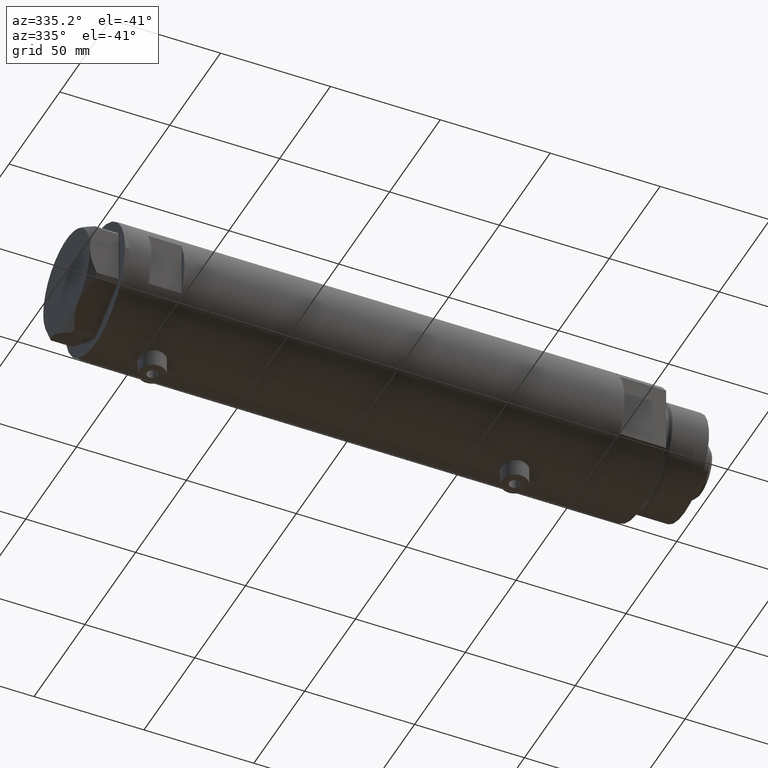
[diagram: clean part render]
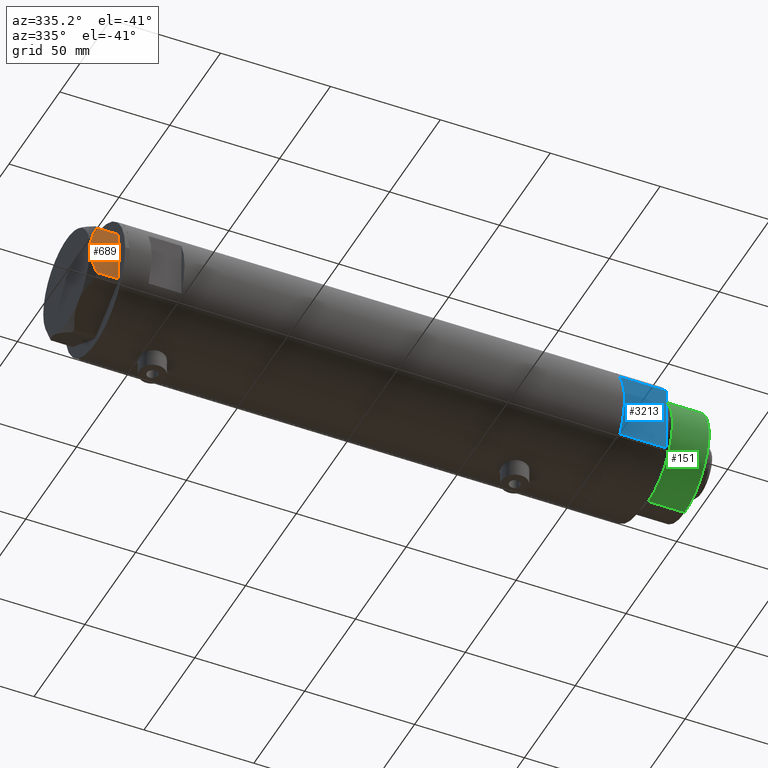
[diagram: same view with three faces highlighted in distinct colors, each labeled with its STEP entity id]
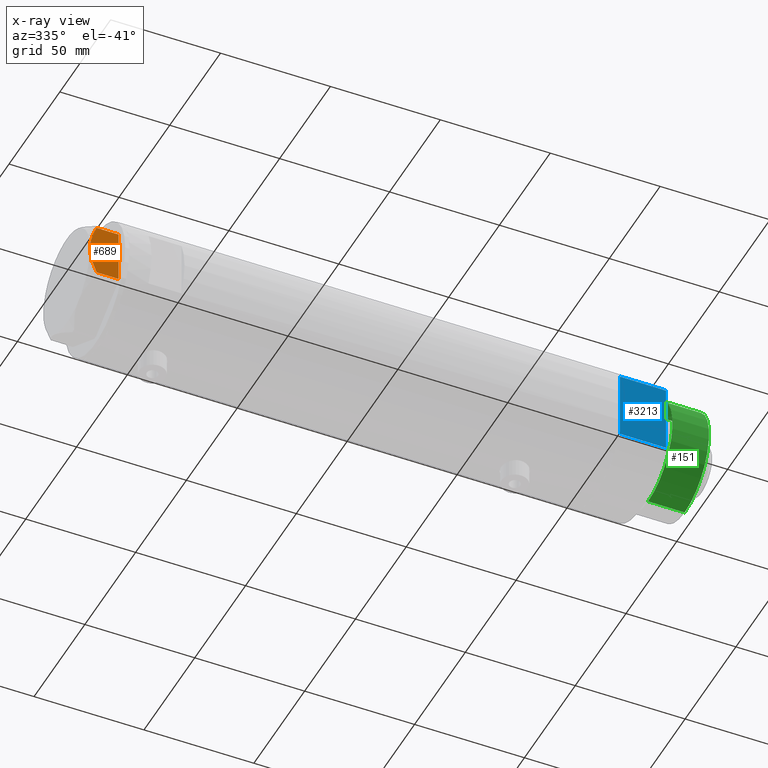
[diagram: x-ray of the same camera — body ghosted, the three highlighted faces saturated]
A machine part, auxiliary view with three faces highlighted in distinct colors.
The next image is the same camera in x-ray (body ghosted, the three faces saturated) — at least one of them is partly hidden behind the body in this view.
Their STEP definitions:

[orange] entity #689 — the highlighted planar face has unit normal (-0, 1, -0).
#215 = EDGE_CURVE ( 'NONE', #2038, #1825, #3089, .T. ) ;
#260 = B_SPLINE_CURVE_WITH_KNOTS ( 'NONE', 3,
 ( #3704, #3304, #1782, #4457, #2695, #2907, #3637, #4749, #4384, #1807 ),
 .UNSPECIFIED., .F., .F.,
 ( 4, 2, 2, 2, 4 ),
 ( 0.03516523594057417712, 0.03831677594541236381, 0.03989254594783145369, 0.04146831595025054357, 0.04777139595992690307 ),
 .UNSPECIFIED. ) ;
#374 = ORIENTED_EDGE ( 'NONE', *, *, #1133, .T. ) ;
#392 = CARTESIAN_POINT ( 'NONE',  ( -22.99999999999990763, -12.15905619136149340, 9.983800287807616414 ) ) ;
#544 = CARTESIAN_POINT ( 'NONE',  ( -22.99999999999992184, -7.253003311474400583, 11.90327681034764140 ) ) ;
#668 = CARTESIAN_POINT ( 'NONE',  ( -22.99999999999999645, 13.27905619136132032, 0.000000000000000000 ) ) ;
#689 = ADVANCED_FACE ( 'NONE', ( #1710 ), #1011, .F. ) ;
#695 = VERTEX_POINT ( 'NONE', #4694 ) ;
#750 = VERTEX_POINT ( 'NONE', #392 ) ;
#887 = ORIENTED_EDGE ( 'NONE', *, *, #215, .T. ) ;
#941 = CARTESIAN_POINT ( 'NONE',  ( -22.99999999999994316, -2.643615312305168441, 12.85430456063626714 ) ) ;
#952 = LINE ( 'NONE', #2443, #3418 ) ;
#1011 = PLANE ( 'NONE',  #1163 ) ;
#1133 = EDGE_CURVE ( 'NONE', #1825, #750, #952, .T. ) ;
#1163 = AXIS2_PLACEMENT_3D ( 'NONE', #4741, #4674, #3977 ) ;
#1279 = CARTESIAN_POINT ( 'NONE',  ( -23.00000000000004619, -8.112498833180673323E-14, 13.00000000000000000 ) ) ;
#1287 = DIRECTION ( 'NONE',  ( 0.000000000000000000, 0.000000000000000000, 1.000000000000000000 ) ) ;
#1310 = ORIENTED_EDGE ( 'NONE', *, *, #2504, .F. ) ;
#1339 = EDGE_CURVE ( 'NONE', #695, #2038, #2711, .T. ) ;
#1569 = EDGE_CURVE ( 'NONE', #695, #3770, #260, .T. ) ;
#1604 = CARTESIAN_POINT ( 'NONE',  ( -22.99999999999994316, -1.063773509315741217, 12.98143808360682883 ) ) ;
#1703 = DIRECTION ( 'NONE',  ( 3.527173405730720141E-15, -1.000000000000000000, 0.000000000000000000 ) ) ;
#1710 = FACE_OUTER_BOUND ( 'NONE', #3928, .T. ) ;
#1782 = CARTESIAN_POINT ( 'NONE',  ( -22.99999999999998579, 10.23890159976121517, 10.84081242829091707 ) ) ;
#1807 = CARTESIAN_POINT ( 'NONE',  ( -23.00000000000004619, -8.112498833180673323E-14, 13.00000000000000000 ) ) ;
#1818 = CARTESIAN_POINT ( 'NONE',  ( -22.99999999999990763, -12.15905619136148985, 0.000000000000000000 ) ) ;
#1825 = VERTEX_POINT ( 'NONE', #1818 ) ;
#1845 = VECTOR ( 'NONE', #1703, 1000.000000000000000 ) ;
#2025 = CARTESIAN_POINT ( 'NONE',  ( -22.99999999999991829, -9.734726261263313418, 11.02892470009565251 ) ) ;
#2038 = VERTEX_POINT ( 'NONE', #2691 ) ;
#2387 = CARTESIAN_POINT ( 'NONE',  ( -22.99999999999995381, -0.5295934231897790889, 13.00000000000009237 ) ) ;
#2443 = CARTESIAN_POINT ( 'NONE',  ( -22.99999999999990763, -12.15905619136148985, 13.00000000000000000 ) ) ;
#2504 = EDGE_CURVE ( 'NONE', #3770, #750, #2619, .T. ) ;
#2619 = B_SPLINE_CURVE_WITH_KNOTS ( 'NONE', 3,
 ( #1279, #2387, #1604, #4217, #941, #4567, #3875, #544, #2702, #2025, #3517, #3833, #4166, #3072 ),
 .UNSPECIFIED., .F., .F.,
 ( 4, 2, 2, 2, 2, 2, 4 ),
 ( 0.04777139595992690307, 0.04934380568070230455, 0.05091621540147769909, 0.05406103484302849510, 0.05720585428457929111, 0.05877826400535468565, 0.06035067372613008019 ),
 .UNSPECIFIED. ) ;
#2663 = DIRECTION ( 'NONE',  ( 0.000000000000000000, 0.000000000000000000, -1.000000000000000000 ) ) ;
#2691 = CARTESIAN_POINT ( 'NONE',  ( -22.99999999999999289, 12.15905619136131754, 0.000000000000000000 ) ) ;
#2695 = CARTESIAN_POINT ( 'NONE',  ( -22.99999999999997513, 8.246028007352348865, 11.57113180864690705 ) ) ;
#2702 = CARTESIAN_POINT ( 'NONE',  ( -22.99999999999992184, -8.252113629125281236, 11.58164206268022234 ) ) ;
#2711 = LINE ( 'NONE', #4551, #2714 ) ;
#2714 = VECTOR ( 'NONE', #2663, 1000.000000000000000 ) ;
#2907 = CARTESIAN_POINT ( 'NONE',  ( -22.99999999999997513, 7.239756182922193695, 11.89218606342285156 ) ) ;
#3072 = CARTESIAN_POINT ( 'NONE',  ( -22.99999999999990763, -12.15905619136149340, 9.983800287807616414 ) ) ;
#3089 = LINE ( 'NONE', #668, #1845 ) ;
#3304 = CARTESIAN_POINT ( 'NONE',  ( -22.99999999999998579, 11.20825071633914582, 10.42817330637845430 ) ) ;
#3418 = VECTOR ( 'NONE', #1287, 1000.000000000000000 ) ;
#3517 = CARTESIAN_POINT ( 'NONE',  ( -22.99999999999991473, -10.22738952213796715, 10.83247031367477398 ) ) ;
#3637 = CARTESIAN_POINT ( 'NONE',  ( -22.99999999999997513, 6.734330413511418811, 12.03938974125266981 ) ) ;
#3704 = CARTESIAN_POINT ( 'NONE',  ( -22.99999999999999289, 12.15905619136132110, 9.983800287807621743 ) ) ;
#3770 = VERTEX_POINT ( 'NONE', #4293 ) ;
#3833 = CARTESIAN_POINT ( 'NONE',  ( -22.99999999999990763, -11.20155944044818241, 10.42110268263274264 ) ) ;
#3875 = CARTESIAN_POINT ( 'NONE',  ( -22.99999999999993250, -5.228918809624134134, 12.43333703384985611 ) ) ;
#3928 = EDGE_LOOP ( 'NONE', ( #4045, #4051, #887, #374, #1310 ) ) ;
#3977 = DIRECTION ( 'NONE',  ( -3.527173405730720929E-15, 1.000000000000000000, 0.000000000000000000 ) ) ;
#4045 = ORIENTED_EDGE ( 'NONE', *, *, #1569, .F. ) ;
#4051 = ORIENTED_EDGE ( 'NONE', *, *, #1339, .T. ) ;
#4166 = CARTESIAN_POINT ( 'NONE',  ( -22.99999999999991473, -11.68282849742337248, 10.20637235269541776 ) ) ;
#4217 = CARTESIAN_POINT ( 'NONE',  ( -22.99999999999993250, -2.119709279061928964, 12.90853521217319688 ) ) ;
#4293 = CARTESIAN_POINT ( 'NONE',  ( -23.00000000000004619, -8.112498833180673323E-14, 13.00000000000000000 ) ) ;
#4384 = CARTESIAN_POINT ( 'NONE',  ( -22.99999999999996092, 2.122900714018063795, 13.00000000000009592 ) ) ;
#4457 = CARTESIAN_POINT ( 'NONE',  ( -22.99999999999997158, 8.748091966971372813, 11.39681897828457302 ) ) ;
#4551 = CARTESIAN_POINT ( 'NONE',  ( -22.99999999999999289, 12.15905619136131754, 13.00000000000000000 ) ) ;
#4567 = CARTESIAN_POINT ( 'NONE',  ( -22.99999999999992895, -4.203926054641974552, 12.64168122312250553 ) ) ;
#4674 = DIRECTION ( 'NONE',  ( 1.000000000000000000, 3.527173405730720929E-15, -0.000000000000000000 ) ) ;
#4694 = CARTESIAN_POINT ( 'NONE',  ( -22.99999999999999289, 12.15905619136132110, 9.983800287807621743 ) ) ;
#4741 = CARTESIAN_POINT ( 'NONE',  ( -22.99999999999999645, 13.27905619136132032, 13.00000000000000000 ) ) ;
#4749 = CARTESIAN_POINT ( 'NONE',  ( -22.99999999999996447, 4.194757081058973824, 12.70300035152520302 ) ) ;

[blue] entity #3213 — the highlighted planar face has unit normal (-0, 1, 0).
#186 = CARTESIAN_POINT ( 'NONE',  ( -15.66045976336582690, -25.00000000000000000, 0.000000000000000000 ) ) ;
#287 = VERTEX_POINT ( 'NONE', #2507 ) ;
#452 = EDGE_CURVE ( 'NONE', #2509, #813, #3520, .T. ) ;
#462 = ORIENTED_EDGE ( 'NONE', *, *, #452, .F. ) ;
#480 = AXIS2_PLACEMENT_3D ( 'NONE', #686, #1145, #783 ) ;
#521 = DIRECTION ( 'NONE',  ( -0.000000000000000000, -0.000000000000000000, 1.000000000000000000 ) ) ;
#527 = EDGE_LOOP ( 'NONE', ( #2682, #462, #3110, #3562, #3222, #2090 ) ) ;
#540 = VECTOR ( 'NONE', #3204, 1000.000000000000000 ) ;
#613 = EDGE_CURVE ( 'NONE', #806, #813, #3906, .T. ) ;
#686 = CARTESIAN_POINT ( 'NONE',  ( -15.66045976336583401, -25.00000000000000000, 0.000000000000000000 ) ) ;
#716 = VECTOR ( 'NONE', #1075, 1000.000000000000000 ) ;
#727 = CARTESIAN_POINT ( 'NONE',  ( -15.66045976336583401, -25.00000000000000000, 0.000000000000000000 ) ) ;
#783 = DIRECTION ( 'NONE',  ( 0.000000000000000000, -0.000000000000000000, 1.000000000000000000 ) ) ;
#806 = VERTEX_POINT ( 'NONE', #3940 ) ;
#813 = VERTEX_POINT ( 'NONE', #4252 ) ;
#940 = VECTOR ( 'NONE', #3066, 1000.000000000000000 ) ;
#1064 = CARTESIAN_POINT ( 'NONE',  ( -15.66045976336583401, -25.00000000000000000, 0.000000000000000000 ) ) ;
#1075 = DIRECTION ( 'NONE',  ( -1.000000000000000000, -0.000000000000000000, -0.000000000000000000 ) ) ;
#1145 = DIRECTION ( 'NONE',  ( -0.000000000000000000, 1.000000000000000000, 0.000000000000000000 ) ) ;
#1148 = LINE ( 'NONE', #4398, #716 ) ;
#1326 = LINE ( 'NONE', #2813, #2485 ) ;
#1407 = VECTOR ( 'NONE', #3565, 1000.000000000000000 ) ;
#1512 = EDGE_CURVE ( 'NONE', #287, #4237, #2169, .T. ) ;
#2090 = ORIENTED_EDGE ( 'NONE', *, *, #3766, .T. ) ;
#2147 = LINE ( 'NONE', #1064, #1407 ) ;
#2169 = LINE ( 'NONE', #727, #940 ) ;
#2391 = CARTESIAN_POINT ( 'NONE',  ( -7.141428428542853091, -25.00000000000000000, 0.000000000000000000 ) ) ;
#2485 = VECTOR ( 'NONE', #4675, 1000.000000000000000 ) ;
#2507 = CARTESIAN_POINT ( 'NONE',  ( 15.66045976336583401, -25.00000000000000000, 0.000000000000000000 ) ) ;
#2509 = VERTEX_POINT ( 'NONE', #186 ) ;
#2575 = FACE_OUTER_BOUND ( 'NONE', #527, .T. ) ;
#2682 = ORIENTED_EDGE ( 'NONE', *, *, #613, .T. ) ;
#2813 = CARTESIAN_POINT ( 'NONE',  ( 15.66045976336583401, -25.00000000000000000, 0.000000000000000000 ) ) ;
#2852 = EDGE_CURVE ( 'NONE', #4237, #4312, #1148, .T. ) ;
#2940 = VECTOR ( 'NONE', #521, 1000.000000000000000 ) ;
#3066 = DIRECTION ( 'NONE',  ( -1.000000000000000000, -0.000000000000000000, -0.000000000000000000 ) ) ;
#3110 = ORIENTED_EDGE ( 'NONE', *, *, #4034, .F. ) ;
#3172 = CARTESIAN_POINT ( 'NONE',  ( -15.66045976336583401, -25.00000000000000000, 21.00000000000000000 ) ) ;
#3204 = DIRECTION ( 'NONE',  ( -1.000000000000000000, -0.000000000000000000, -0.000000000000000000 ) ) ;
#3213 = ADVANCED_FACE ( 'NONE', ( #2575 ), #4033, .F. ) ;
#3222 = ORIENTED_EDGE ( 'NONE', *, *, #1512, .F. ) ;
#3421 = CARTESIAN_POINT ( 'NONE',  ( -15.66045976336583401, -25.00000000000000000, 0.000000000000000000 ) ) ;
#3520 = LINE ( 'NONE', #3421, #2940 ) ;
#3562 = ORIENTED_EDGE ( 'NONE', *, *, #2852, .F. ) ;
#3565 = DIRECTION ( 'NONE',  ( -1.000000000000000000, -0.000000000000000000, -0.000000000000000000 ) ) ;
#3766 = EDGE_CURVE ( 'NONE', #287, #806, #1326, .T. ) ;
#3906 = LINE ( 'NONE', #3172, #540 ) ;
#3940 = CARTESIAN_POINT ( 'NONE',  ( 15.66045976336583045, -25.00000000000000000, 21.00000000000000355 ) ) ;
#4033 = PLANE ( 'NONE',  #480 ) ;
#4034 = EDGE_CURVE ( 'NONE', #4312, #2509, #2147, .T. ) ;
#4146 = CARTESIAN_POINT ( 'NONE',  ( 7.141428428542853091, -25.00000000000000000, 0.000000000000000000 ) ) ;
#4237 = VERTEX_POINT ( 'NONE', #4146 ) ;
#4252 = CARTESIAN_POINT ( 'NONE',  ( -15.66045976336583045, -24.99999999999999645, 20.99999999999999645 ) ) ;
#4312 = VERTEX_POINT ( 'NONE', #2391 ) ;
#4398 = CARTESIAN_POINT ( 'NONE',  ( -15.66045976336583401, -25.00000000000000000, 0.000000000000000000 ) ) ;
#4675 = DIRECTION ( 'NONE',  ( -0.000000000000000000, -0.000000000000000000, 1.000000000000000000 ) ) ;

[green] entity #151 — the highlighted cylindrical surface (partial cylindrical patch) has radius 24 mm, axis along (-1, -0, 0).
#151 = ADVANCED_FACE ( 'NONE', ( #2676 ), #1947, .T. ) ;
#678 = CARTESIAN_POINT ( 'NONE',  ( 24.00000000000000355, 2.939152317953648289E-15, 24.37384048104054557 ) ) ;
#739 = DIRECTION ( 'NONE',  ( 1.000000000000000000, 0.000000000000000000, 0.000000000000000000 ) ) ;
#860 = CARTESIAN_POINT ( 'NONE',  ( 0.000000000000000000, 0.000000000000000000, 41.00000000000000000 ) ) ;
#1159 = EDGE_CURVE ( 'NONE', #4581, #3976, #1934, .T. ) ;
#1236 = CARTESIAN_POINT ( 'NONE',  ( 0.000000000000000000, 0.000000000000000000, 41.00000000000000000 ) ) ;
#1262 = CARTESIAN_POINT ( 'NONE',  ( 24.00000000000000355, 2.939152317953648289E-15, 41.00000000000000000 ) ) ;
#1306 = EDGE_CURVE ( 'NONE', #4581, #3602, #2003, .T. ) ;
#1441 = CARTESIAN_POINT ( 'NONE',  ( -24.00000000000000355, 0.000000000000000000, 41.00000000000000000 ) ) ;
#1600 = DIRECTION ( 'NONE',  ( -1.000000000000000000, 0.000000000000000000, 0.000000000000000000 ) ) ;
#1697 = AXIS2_PLACEMENT_3D ( 'NONE', #860, #2334, #1600 ) ;
#1791 = VECTOR ( 'NONE', #3492, 1000.000000000000000 ) ;
#1821 = CARTESIAN_POINT ( 'NONE',  ( 0.000000000000000000, 0.000000000000000000, 24.37384048104054557 ) ) ;
#1934 = CIRCLE ( 'NONE', #3649, 24.00000000000000355 ) ;
#1942 = ORIENTED_EDGE ( 'NONE', *, *, #4247, .F. ) ;
#1947 = CYLINDRICAL_SURFACE ( 'NONE', #1697, 24.00000000000000355 ) ;
#2001 = CARTESIAN_POINT ( 'NONE',  ( -24.00000000000000355, 0.000000000000000000, 24.37384048104054557 ) ) ;
#2003 = LINE ( 'NONE', #3056, #3804 ) ;
#2030 = AXIS2_PLACEMENT_3D ( 'NONE', #1821, #2600, #739 ) ;
#2267 = ORIENTED_EDGE ( 'NONE', *, *, #2824, .T. ) ;
#2334 = DIRECTION ( 'NONE',  ( -0.000000000000000000, -0.000000000000000000, -1.000000000000000000 ) ) ;
#2369 = LINE ( 'NONE', #1262, #1791 ) ;
#2600 = DIRECTION ( 'NONE',  ( -0.000000000000000000, -0.000000000000000000, 1.000000000000000000 ) ) ;
#2676 = FACE_OUTER_BOUND ( 'NONE', #3775, .T. ) ;
#2713 = DIRECTION ( 'NONE',  ( 0.000000000000000000, 0.000000000000000000, 1.000000000000000000 ) ) ;
#2762 = ORIENTED_EDGE ( 'NONE', *, *, #1306, .T. ) ;
#2824 = EDGE_CURVE ( 'NONE', #3602, #4016, #4122, .T. ) ;
#2889 = CARTESIAN_POINT ( 'NONE',  ( 24.00000000000000355, 2.939152317953648289E-15, 41.00000000000000000 ) ) ;
#3056 = CARTESIAN_POINT ( 'NONE',  ( -24.00000000000000355, 0.000000000000000000, 41.00000000000000000 ) ) ;
#3492 = DIRECTION ( 'NONE',  ( -0.000000000000000000, -0.000000000000000000, -1.000000000000000000 ) ) ;
#3602 = VERTEX_POINT ( 'NONE', #2001 ) ;
#3649 = AXIS2_PLACEMENT_3D ( 'NONE', #1236, #2713, #4202 ) ;
#3775 = EDGE_LOOP ( 'NONE', ( #1942, #4717, #2762, #2267 ) ) ;
#3804 = VECTOR ( 'NONE', #3881, 1000.000000000000000 ) ;
#3881 = DIRECTION ( 'NONE',  ( -0.000000000000000000, -0.000000000000000000, -1.000000000000000000 ) ) ;
#3976 = VERTEX_POINT ( 'NONE', #2889 ) ;
#4016 = VERTEX_POINT ( 'NONE', #678 ) ;
#4122 = CIRCLE ( 'NONE', #2030, 24.00000000000000355 ) ;
#4202 = DIRECTION ( 'NONE',  ( 1.000000000000000000, 0.000000000000000000, 0.000000000000000000 ) ) ;
#4247 = EDGE_CURVE ( 'NONE', #3976, #4016, #2369, .T. ) ;
#4581 = VERTEX_POINT ( 'NONE', #1441 ) ;
#4717 = ORIENTED_EDGE ( 'NONE', *, *, #1159, .F. ) ;